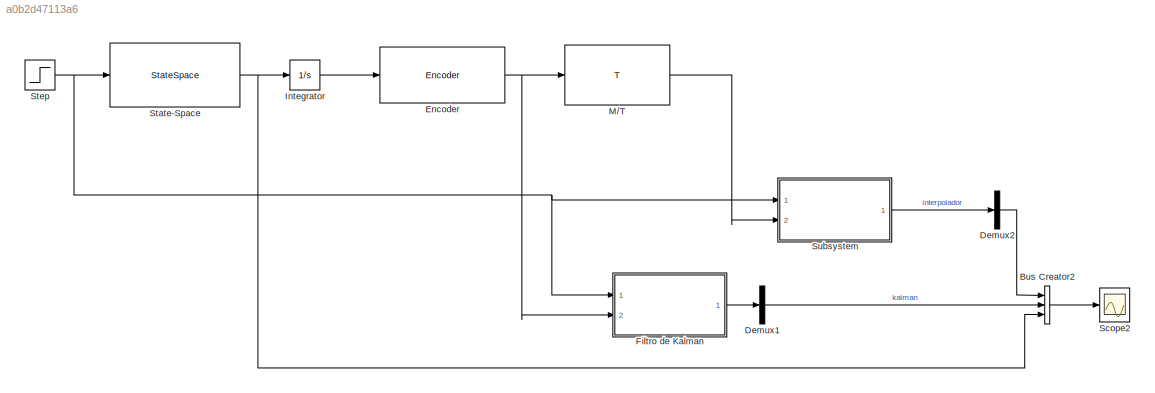
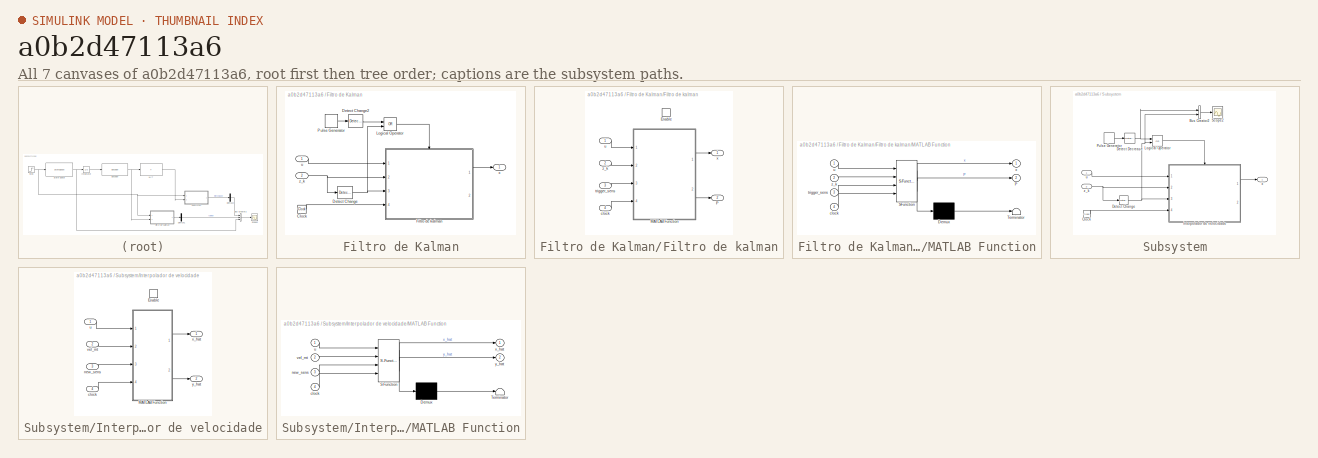
[diagram: thumbnail index - all 7 canvases of the model, root first then tree order]
MODEL slx_a0b2d47113a6
KIND model
BLOCK [BusCreator] Bus Creator2
  DisplayOption = bar
  Inputs = 3
  Ports = [3, 1]
BLOCK [Demux] Demux1
  DisplayOption = bar
  Outputs = 3
  Ports = [1, 3]
BLOCK [Demux] Demux2
  DisplayOption = bar
  Outputs = 3
  Ports = [1, 3]
BLOCK [Reference] Encoder  REF=Encoder/Encoder
  Nr = 10
  Ports = [1, 1]
  SourceBlock = Encoder/Encoder
  SourceType = Encoder de quadratura
BLOCK [SubSystem] Filtro de Kalman
  FunctionWithSeparateData = off
  MaskHideContents = off
  MinAlgLoopOccurrences = off
  Opaque = off
  Ports = [2, 1]
  PropExecContextOutsideSubsystem = off
  RTWSystemCode = Auto
  RequestExecContextInheritance = off
BLOCK [Clock] Filtro de Kalman/Clock
BLOCK [Reference] Filtro de Kalman/Detect Change  REF=simulink/Logic and Bit
Operations/Detect
Change
  InputProcessing = Inherited
  OutDataTypeStr = boolean
  Ports = [1, 1]
  SourceBlock = simulink/Logic and Bit\nOperations/Detect\nChange
  SourceType = Detect Change
  vinit = 0
BLOCK [Reference] Filtro de Kalman/Detect Change2  REF=simulink/Logic and Bit
Operations/Detect
Change
  InputProcessing = Inherited
  OutDataTypeStr = boolean
  Ports = [1, 1]
  SourceBlock = simulink/Logic and Bit\nOperations/Detect\nChange
  SourceType = Detect Change
  vinit = 0
BLOCK [SubSystem] Filtro de Kalman/Filtro de kalman
  FunctionWithSeparateData = off
  MaskHideContents = off
  MinAlgLoopOccurrences = off
  Opaque = off
  Ports = [4, 2, 1]
  PropExecContextOutsideSubsystem = off
  RTWSystemCode = Auto
  RequestExecContextInheritance = off
BLOCK [EnablePort] Filtro de Kalman/Filtro de kalman/Enable
  Ports = []
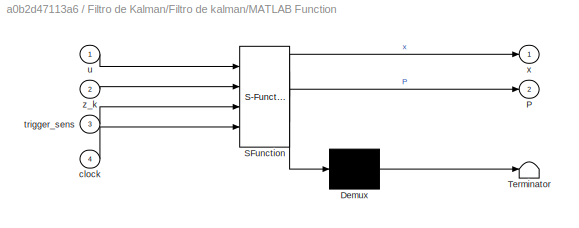
BLOCK [SubSystem] Filtro de Kalman/Filtro de kalman/MATLAB Function
  ErrorFcn = Stateflow.Translate.translate
  FunctionWithSeparateData = off
  MaskHideContents = off
  MinAlgLoopOccurrences = off
  Opaque = off
  PermitHierarchicalResolution = ExplicitOnly
  Ports = [4, 2]
  PropExecContextOutsideSubsystem = off
  RTWSystemCode = Auto
  RequestExecContextInheritance = off
  SFBlockType = MATLAB Function
  TreatAsAtomicUnit = on
BLOCK [Demux] Filtro de Kalman/Filtro de kalman/MATLAB Function/ Demux 
  Outputs = 1
  Ports = [1, 1]
BLOCK [S-Function] Filtro de Kalman/Filtro de kalman/MATLAB Function/ SFunction 
  EnableBusSupport = on
  FunctionName = sf_sfun
  PortCounts = [4 3]
  Ports = [4, 3]
  Tag = Stateflow S-Function compacaracao 3
BLOCK [Terminator] Filtro de Kalman/Filtro de kalman/MATLAB Function/ Terminator 
BLOCK [Outport] Filtro de Kalman/Filtro de kalman/MATLAB Function/P
  IconDisplay = Port number
  Port = 2
BLOCK [Inport] Filtro de Kalman/Filtro de kalman/MATLAB Function/clock
  IconDisplay = Port number
  Port = 4
BLOCK [Inport] Filtro de Kalman/Filtro de kalman/MATLAB Function/trigger_sens
  IconDisplay = Port number
  Port = 3
BLOCK [Inport] Filtro de Kalman/Filtro de kalman/MATLAB Function/u
  IconDisplay = Port number
BLOCK [Outport] Filtro de Kalman/Filtro de kalman/MATLAB Function/x
  IconDisplay = Port number
BLOCK [Inport] Filtro de Kalman/Filtro de kalman/MATLAB Function/z_k
  IconDisplay = Port number
  Port = 2
BLOCK [Outport] Filtro de Kalman/Filtro de kalman/P
  IconDisplay = Port number
  Port = 2
BLOCK [Inport] Filtro de Kalman/Filtro de kalman/clock
  IconDisplay = Port number
  Port = 4
BLOCK [Inport] Filtro de Kalman/Filtro de kalman/trigger_sens
  IconDisplay = Port number
  Port = 3
BLOCK [Inport] Filtro de Kalman/Filtro de kalman/u
  IconDisplay = Port number
BLOCK [Outport] Filtro de Kalman/Filtro de kalman/x
  IconDisplay = Port number
BLOCK [Inport] Filtro de Kalman/Filtro de kalman/z_k 
  IconDisplay = Port number
  Port = 2
BLOCK [Logic] Filtro de Kalman/Logical Operator
  AllPortsSameDT = off
  Operator = OR
  OutDataTypeStr = boolean
  Ports = [2, 1]
BLOCK [DiscretePulseGenerator] Filtro de Kalman/Pulse Generator
  Period = 0.0004
  Ports = [0, 1]
  PulseType = Time based
  PulseWidth = 50
BLOCK [Inport] Filtro de Kalman/u
  IconDisplay = Port number
BLOCK [Outport] Filtro de Kalman/x
  IconDisplay = Port number
BLOCK [Inport] Filtro de Kalman/z_k
  IconDisplay = Port number
  Port = 2
BLOCK [Integrator] Integrator
  Ports = [1, 1]
BLOCK [Reference] M//T  REF=Encoder/M//T
  Ports = [1, 1]
  SourceBlock = Encoder/M//T
  Ts = 0.02
BLOCK [Scope] Scope2
  DataFormat = StructureWithTime
  Floating = off
  LegendLocations = 0.80503     0.50705    0.073125    0.063707
  LimitDataPoints = off
  NumInputPorts = 1
  Ports = [1]
  SampleTime = 0
  SaveName = ScopeData1
  ShowLegends = on
  TimeRange = 0.0004368562041504875
  YMax = 5816.985142638738
  YMin = 5803.198494476836
BLOCK [StateSpace] State-Space
  A = SS.a
  B = SS.b
  C = SS.c
  D = SS.d
BLOCK [Step] Step
  After = -12
  Before = 12
  SampleTime = 0
BLOCK [SubSystem] Subsystem
  FunctionWithSeparateData = off
  MaskHideContents = off
  MinAlgLoopOccurrences = off
  Opaque = off
  Ports = [2, 1]
  PropExecContextOutsideSubsystem = off
  RTWSystemCode = Auto
  RequestExecContextInheritance = off
BLOCK [BusCreator] Subsystem/Bus Creator2
  DisplayOption = bar
  Inputs = 2
  Ports = [2, 1]
BLOCK [Clock] Subsystem/Clock
BLOCK [Reference] Subsystem/Detect Change  REF=simulink/Logic and Bit
Operations/Detect
Change
  InputProcessing = Inherited
  OutDataTypeStr = boolean
  Ports = [1, 1]
  SourceBlock = simulink/Logic and Bit\nOperations/Detect\nChange
  SourceType = Detect Change
  vinit = 0
BLOCK [Reference] Subsystem/Detect Decrease  REF=simulink/Logic and Bit
Operations/Detect
Decrease
  InputProcessing = Inherited
  OutDataTypeStr = boolean
  Ports = [1, 1]
  SourceBlock = simulink/Logic and Bit\nOperations/Detect\nDecrease
  SourceType = Detect Decrease
  vinit = 0.0
BLOCK [SubSystem] Subsystem/Interpolador de velocidade
  FunctionWithSeparateData = off
  MaskHideContents = off
  MinAlgLoopOccurrences = off
  Opaque = off
  Ports = [4, 2, 1]
  PropExecContextOutsideSubsystem = off
  RTWSystemCode = Auto
  RequestExecContextInheritance = off
BLOCK [EnablePort] Subsystem/Interpolador de velocidade/Enable
  Ports = []
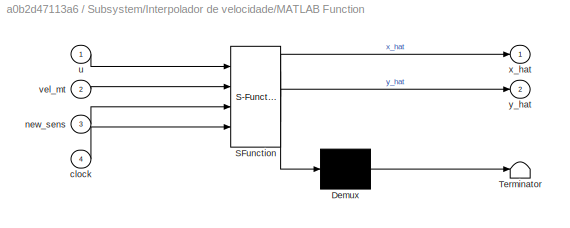
BLOCK [SubSystem] Subsystem/Interpolador de velocidade/MATLAB Function
  ErrorFcn = Stateflow.Translate.translate
  FunctionWithSeparateData = off
  MaskHideContents = off
  MinAlgLoopOccurrences = off
  Opaque = off
  PermitHierarchicalResolution = ExplicitOnly
  Ports = [4, 2]
  PropExecContextOutsideSubsystem = off
  RTWSystemCode = Auto
  RequestExecContextInheritance = off
  SFBlockType = MATLAB Function
  TreatAsAtomicUnit = on
BLOCK [Demux] Subsystem/Interpolador de velocidade/MATLAB Function/ Demux 
  Outputs = 1
  Ports = [1, 1]
BLOCK [S-Function] Subsystem/Interpolador de velocidade/MATLAB Function/ SFunction 
  EnableBusSupport = on
  FunctionName = sf_sfun
  PortCounts = [4 3]
  Ports = [4, 3]
  Tag = Stateflow S-Function compacaracao 2
BLOCK [Terminator] Subsystem/Interpolador de velocidade/MATLAB Function/ Terminator 
BLOCK [Inport] Subsystem/Interpolador de velocidade/MATLAB Function/clock
  IconDisplay = Port number
  Port = 4
BLOCK [Inport] Subsystem/Interpolador de velocidade/MATLAB Function/new_sens
  IconDisplay = Port number
  Port = 3
BLOCK [Inport] Subsystem/Interpolador de velocidade/MATLAB Function/u
  IconDisplay = Port number
BLOCK [Inport] Subsystem/Interpolador de velocidade/MATLAB Function/vel_mt
  IconDisplay = Port number
  Port = 2
BLOCK [Outport] Subsystem/Interpolador de velocidade/MATLAB Function/x_hat
  IconDisplay = Port number
BLOCK [Outport] Subsystem/Interpolador de velocidade/MATLAB Function/y_hat
  IconDisplay = Port number
  Port = 2
BLOCK [Inport] Subsystem/Interpolador de velocidade/clock
  IconDisplay = Port number
  Port = 4
BLOCK [Inport] Subsystem/Interpolador de velocidade/new_sens
  IconDisplay = Port number
  Port = 3
BLOCK [Inport] Subsystem/Interpolador de velocidade/u
  IconDisplay = Port number
BLOCK [Inport] Subsystem/Interpolador de velocidade/vel_mt
  IconDisplay = Port number
  Port = 2
BLOCK [Outport] Subsystem/Interpolador de velocidade/x_hat
  IconDisplay = Port number
BLOCK [Outport] Subsystem/Interpolador de velocidade/y_hat
  IconDisplay = Port number
  Port = 2
BLOCK [Logic] Subsystem/Logical Operator
  AllPortsSameDT = off
  Operator = OR
  OutDataTypeStr = boolean
  Ports = [2, 1]
BLOCK [DiscretePulseGenerator] Subsystem/Pulse Generator
  Period = 0.0004
  Ports = [0, 1]
  PulseType = Time based
  PulseWidth = 50
BLOCK [Scope] Subsystem/Scope2
  DataFormat = StructureWithTime
  Floating = off
  LegendLocations = 0.7121     0.79169    0.090625     0.04439
  LimitDataPoints = off
  NumInputPorts = 1
  Ports = [1]
  SampleTime = 0
  SaveName = ScopeData2
  ShowLegends = on
  YMax = 1.5
  YMin = -1
  ZoomMode = xonly
BLOCK [Inport] Subsystem/u
  IconDisplay = Port number
BLOCK [Outport] Subsystem/x
  IconDisplay = Port number
BLOCK [Inport] Subsystem/z_k
  IconDisplay = Port number
  Port = 2
LINE Bus Creator2:1 -> Scope2:1
LINE Demux1:2 -> Bus Creator2:2
LINE Demux2:2 -> Bus Creator2:1
NET Encoder:1 -> Filtro de Kalman:2, M//T:1
LINE Filtro de Kalman/Clock:1 -> Filtro de Kalman/Filtro de kalman:4
LINE Filtro de Kalman/Detect Change2:1 -> Filtro de Kalman/Logical Operator:1
NET Filtro de Kalman/Detect Change:1 -> Filtro de Kalman/Filtro de kalman:3, Filtro de Kalman/Logical Operator:2
LINE Filtro de Kalman/Filtro de kalman/MATLAB Function:1 -> Filtro de Kalman/Filtro de kalman/x:1
LINE Filtro de Kalman/Filtro de kalman/MATLAB Function:2 -> Filtro de Kalman/Filtro de kalman/P:1
LINE Filtro de Kalman/Filtro de kalman/clock:1 -> Filtro de Kalman/Filtro de kalman/MATLAB Function:4
LINE Filtro de Kalman/Filtro de kalman/trigger_sens:1 -> Filtro de Kalman/Filtro de kalman/MATLAB Function:3
LINE Filtro de Kalman/Filtro de kalman/u:1 -> Filtro de Kalman/Filtro de kalman/MATLAB Function:1
LINE Filtro de Kalman/Filtro de kalman/z_k :1 -> Filtro de Kalman/Filtro de kalman/MATLAB Function:2
LINE Filtro de Kalman/Filtro de kalman:1 -> Filtro de Kalman/x:1
LINE Filtro de Kalman/Logical Operator:1 -> Filtro de Kalman/Filtro de kalman:enable
LINE Filtro de Kalman/Pulse Generator:1 -> Filtro de Kalman/Detect Change2:1
LINE Filtro de Kalman/u:1 -> Filtro de Kalman/Filtro de kalman:1
NET Filtro de Kalman/z_k:1 -> Filtro de Kalman/Detect Change:1, Filtro de Kalman/Filtro de kalman:2
LINE Filtro de Kalman:1 -> Demux1:1
LINE Integrator:1 -> Encoder:1
LINE M//T:1 -> Subsystem:2
NET State-Space:1 -> Bus Creator2:3, Integrator:1
NET Step:1 -> Filtro de Kalman:1, State-Space:1, Subsystem:1
LINE Subsystem/Bus Creator2:1 -> Subsystem/Scope2:1
LINE Subsystem/Clock:1 -> Subsystem/Interpolador de velocidade:4
NET Subsystem/Detect Change:1 -> Subsystem/Bus Creator2:2, Subsystem/Interpolador de velocidade:3, Subsystem/Logical Operator:2
NET Subsystem/Detect Decrease:1 -> Subsystem/Bus Creator2:1, Subsystem/Logical Operator:1
LINE Subsystem/Interpolador de velocidade/MATLAB Function:1 -> Subsystem/Interpolador de velocidade/x_hat:1
LINE Subsystem/Interpolador de velocidade/MATLAB Function:2 -> Subsystem/Interpolador de velocidade/y_hat:1
LINE Subsystem/Interpolador de velocidade/clock:1 -> Subsystem/Interpolador de velocidade/MATLAB Function:4
LINE Subsystem/Interpolador de velocidade/new_sens:1 -> Subsystem/Interpolador de velocidade/MATLAB Function:3
LINE Subsystem/Interpolador de velocidade/u:1 -> Subsystem/Interpolador de velocidade/MATLAB Function:1
LINE Subsystem/Interpolador de velocidade/vel_mt:1 -> Subsystem/Interpolador de velocidade/MATLAB Function:2
LINE Subsystem/Interpolador de velocidade:1 -> Subsystem/x:1
LINE Subsystem/Logical Operator:1 -> Subsystem/Interpolador de velocidade:enable
LINE Subsystem/Pulse Generator:1 -> Subsystem/Detect Decrease:1
LINE Subsystem/u:1 -> Subsystem/Interpolador de velocidade:1
NET Subsystem/z_k:1 -> Subsystem/Detect Change:1, Subsystem/Interpolador de velocidade:2
LINE Subsystem:1 -> Demux2:1
note: NET lines group one-source signal fan-out (src -> all destinations, sorted); 1:1 wires keep LINE
